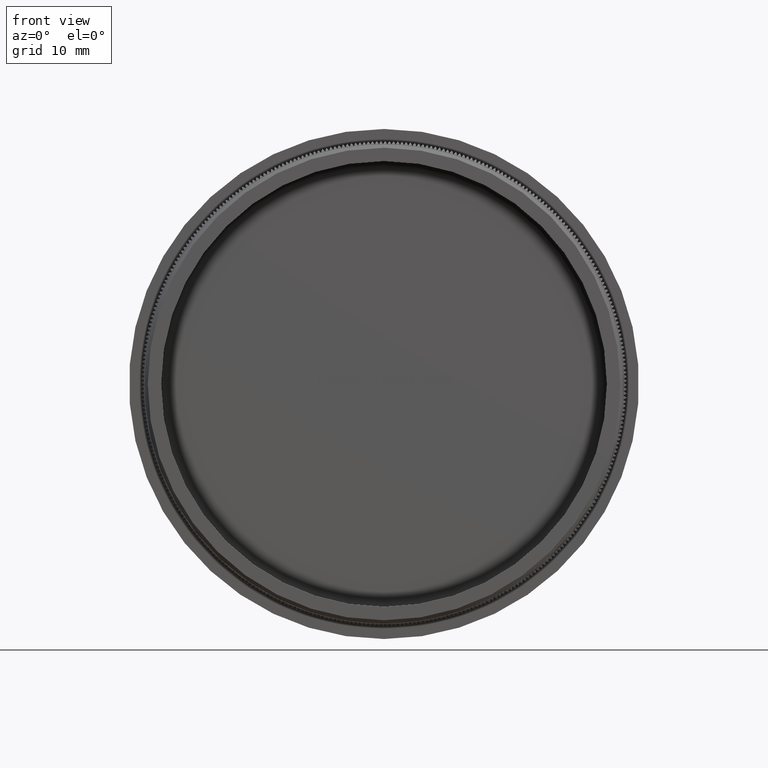
[diagram: clean part render]
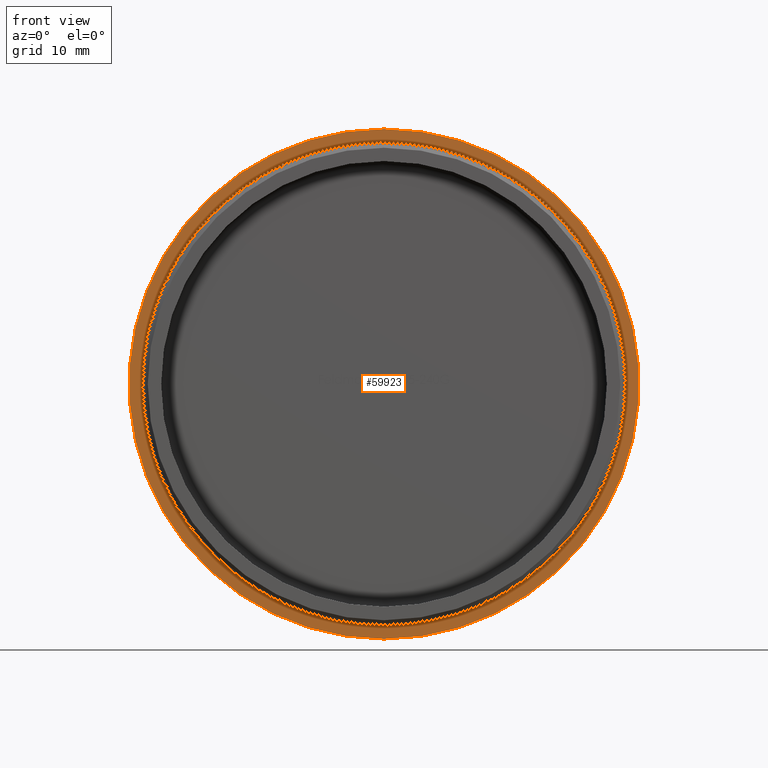
[diagram: same view with one face highlighted and labeled with its STEP entity id]
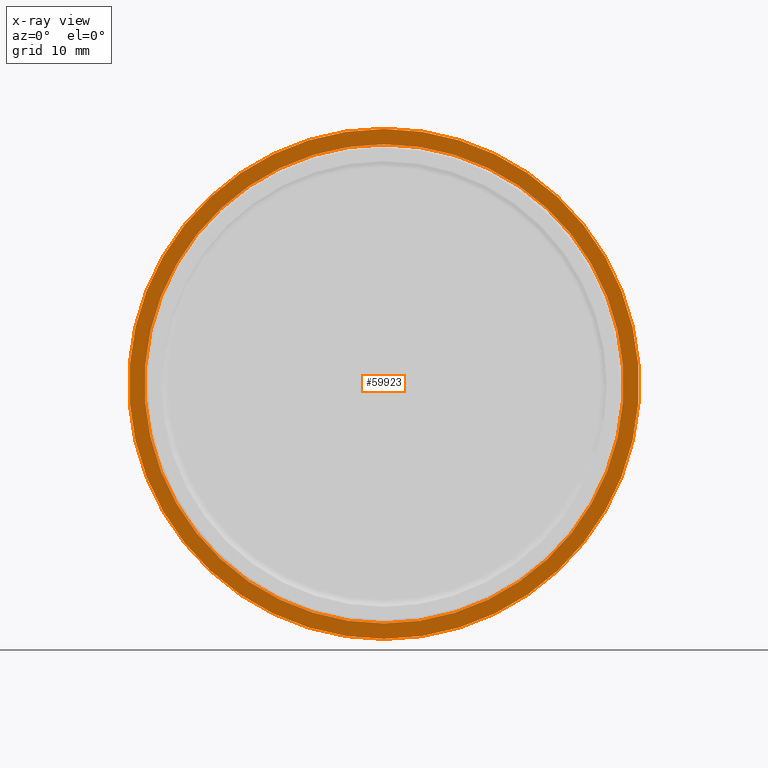
[diagram: x-ray of the same camera — body ghosted, the highlighted face saturated]
A machine part, front view. The second image highlights one B-rep face of the part: STEP entity #59923.
The next image is the same camera in x-ray: the body ghosted, the highlighted face saturated — about 2% of this face is hidden behind the body in this view.
In plain terms, the highlighted planar face has unit normal (-0, 1, 0).
Its self-contained STEP definition (entity closure, byte-faithful):
#172 = DIRECTION ( 'NONE',  ( -0.0000000000000000000, 1.000000000000000000, -0.0000000000000000000 ) ) ;
#565 = ORIENTED_EDGE ( 'NONE', *, *, #76533, .F. ) ;
#1318 = CARTESIAN_POINT ( 'NONE',  ( 4.378112306951787100E-015, 15.00000000000000000, -35.75000000000000000 ) ) ;
#2144 = FACE_BOUND ( 'NONE', #63812, .T. ) ;
#3176 = DIRECTION ( 'NONE',  ( -0.0000000000000000000, 1.000000000000000000, -0.0000000000000000000 ) ) ;
#6328 = CARTESIAN_POINT ( 'NONE',  ( 4.659781070755679000E-015, 15.00000000000000000, -38.04999999999999700 ) ) ;
#8198 = DIRECTION ( 'NONE',  ( 0.0000000000000000000, 0.0000000000000000000, 1.000000000000000000 ) ) ;
#13447 = PLANE ( 'NONE',  #24316 ) ;
#13485 = AXIS2_PLACEMENT_3D ( 'NONE', #18708, #60807, #68072 ) ;
#13517 = CARTESIAN_POINT ( 'NONE',  ( 0.0000000000000000000, 15.00000000000000000, 0.0000000000000000000 ) ) ;
#14967 = VERTEX_POINT ( 'NONE', #6328 ) ;
#15503 = VERTEX_POINT ( 'NONE', #31934 ) ;
#18708 = CARTESIAN_POINT ( 'NONE',  ( 0.0000000000000000000, 15.00000000000000000, 0.0000000000000000000 ) ) ;
#21271 = CARTESIAN_POINT ( 'NONE',  ( 0.0000000000000000000, 15.00000000000000000, 0.0000000000000000000 ) ) ;
#22642 = CIRCLE ( 'NONE', #13485, 35.75000000000000000 ) ;
#23172 = EDGE_CURVE ( 'NONE', #15503, #14967, #27684, .T. ) ;
#24316 = AXIS2_PLACEMENT_3D ( 'NONE', #54109, #27035, #76140 ) ;
#27035 = DIRECTION ( 'NONE',  ( -0.0000000000000000000, 1.000000000000000000, 0.0000000000000000000 ) ) ;
#27064 = EDGE_LOOP ( 'NONE', ( #40034, #565 ) ) ;
#27684 = CIRCLE ( 'NONE', #49598, 38.04999999999999700 ) ;
#31934 = CARTESIAN_POINT ( 'NONE',  ( 0.0000000000000000000, 15.00000000000000000, 38.04999999999999700 ) ) ;
#37291 = AXIS2_PLACEMENT_3D ( 'NONE', #21271, #62778, #8198 ) ;
#38891 = FACE_OUTER_BOUND ( 'NONE', #27064, .T. ) ;
#40034 = ORIENTED_EDGE ( 'NONE', *, *, #23172, .F. ) ;
#40270 = VERTEX_POINT ( 'NONE', #1318 ) ;
#41507 = CARTESIAN_POINT ( 'NONE',  ( 0.0000000000000000000, 15.00000000000000000, 35.75000000000000000 ) ) ;
#43914 = CARTESIAN_POINT ( 'NONE',  ( 0.0000000000000000000, 15.00000000000000000, 0.0000000000000000000 ) ) ;
#48455 = DIRECTION ( 'NONE',  ( 0.0000000000000000000, 0.0000000000000000000, 1.000000000000000000 ) ) ;
#49598 = AXIS2_PLACEMENT_3D ( 'NONE', #13517, #172, #48455 ) ;
#54109 = CARTESIAN_POINT ( 'NONE',  ( 35.75000000000000000, 15.00000000000000000, 0.0000000000000000000 ) ) ;
#56235 = ORIENTED_EDGE ( 'NONE', *, *, #78508, .T. ) ;
#56583 = AXIS2_PLACEMENT_3D ( 'NONE', #43914, #3176, #64400 ) ;
#57075 = ORIENTED_EDGE ( 'NONE', *, *, #79638, .T. ) ;
#57475 = VERTEX_POINT ( 'NONE', #41507 ) ;
#59923 = ADVANCED_FACE ( 'NONE', ( #38891, #2144 ), #13447, .F. ) ;
#60807 = DIRECTION ( 'NONE',  ( -0.0000000000000000000, 1.000000000000000000, -0.0000000000000000000 ) ) ;
#62778 = DIRECTION ( 'NONE',  ( -0.0000000000000000000, 1.000000000000000000, -0.0000000000000000000 ) ) ;
#63812 = EDGE_LOOP ( 'NONE', ( #57075, #56235 ) ) ;
#64400 = DIRECTION ( 'NONE',  ( 0.0000000000000000000, 0.0000000000000000000, 1.000000000000000000 ) ) ;
#68072 = DIRECTION ( 'NONE',  ( 0.0000000000000000000, 0.0000000000000000000, 1.000000000000000000 ) ) ;
#76140 = DIRECTION ( 'NONE',  ( 0.0000000000000000000, 0.0000000000000000000, 1.000000000000000000 ) ) ;
#76533 = EDGE_CURVE ( 'NONE', #14967, #15503, #88416, .T. ) ;
#78508 = EDGE_CURVE ( 'NONE', #40270, #57475, #22642, .T. ) ;
#79638 = EDGE_CURVE ( 'NONE', #57475, #40270, #87307, .T. ) ;
#87307 = CIRCLE ( 'NONE', #37291, 35.75000000000000000 ) ;
#88416 = CIRCLE ( 'NONE', #56583, 38.04999999999999700 ) ;